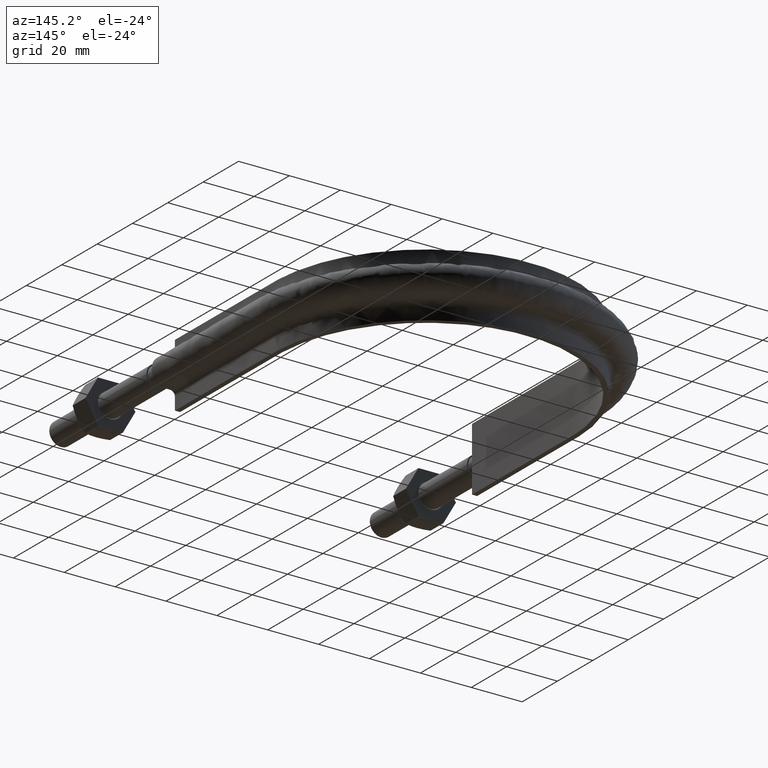
[diagram: clean part render]
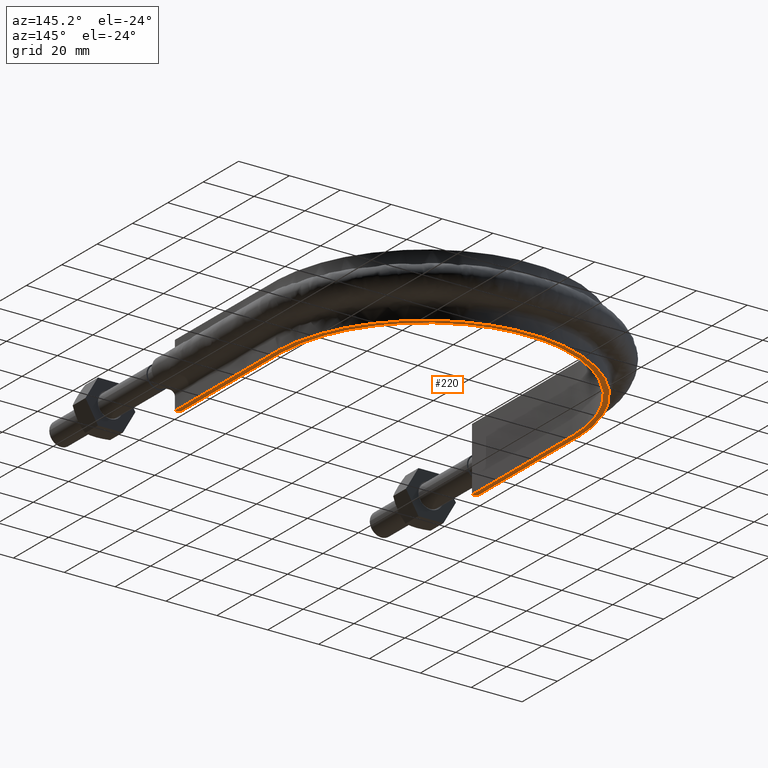
[diagram: same view with one face highlighted and labeled with its STEP entity id]
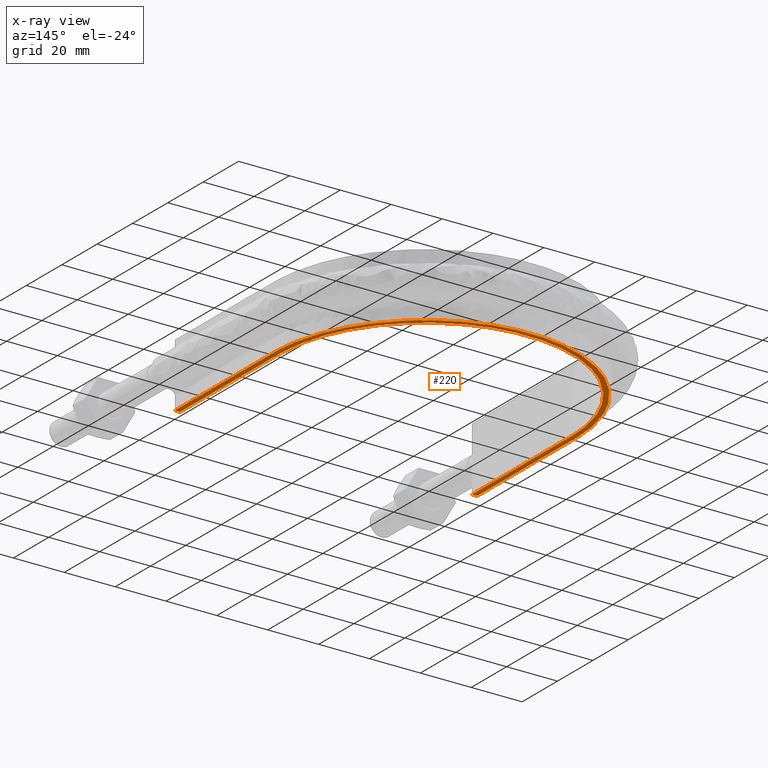
[diagram: x-ray of the same camera — body ghosted, the highlighted face saturated]
A machine part, auxiliary view. The second image highlights one B-rep face of the part: STEP entity #220.
The next image is the same camera in x-ray: the body ghosted, the highlighted face saturated — about 0% of this face is hidden behind the body in this view.
In plain terms, the highlighted planar face has unit normal (0, 0, 1).
Its self-contained STEP definition (entity closure, byte-faithful):
#220 = ADVANCED_FACE( '', ( #297 ), #298, .F. );
#297 = FACE_OUTER_BOUND( '', #464, .T. );
#298 = PLANE( '', #465 );
#464 = EDGE_LOOP( '', ( #1291, #1292, #1293, #1294 ) );
#465 = AXIS2_PLACEMENT_3D( '', #1295, #1296, #1297 );
#1291 = ORIENTED_EDGE( '', *, *, #1821, .F. );
#1292 = ORIENTED_EDGE( '', *, *, #1820, .F. );
#1293 = ORIENTED_EDGE( '', *, *, #1822, .F. );
#1294 = ORIENTED_EDGE( '', *, *, #1823, .F. );
#1295 = CARTESIAN_POINT( '', ( 75.0000000000000, 189.300000000000, -12.5000000000000 ) );
#1296 = DIRECTION( '', ( 0.000000000000000, 0.000000000000000, 1.00000000000000 ) );
#1297 = DIRECTION( '', ( 1.00000000000000, 0.000000000000000, 0.000000000000000 ) );
#1820 = EDGE_CURVE( '', #1972, #1968, #1974, .T. );
#1821 = EDGE_CURVE( '', #1968, #1975, #1976, .F. );
#1822 = EDGE_CURVE( '', #1977, #1972, #1978, .F. );
#1823 = EDGE_CURVE( '', #1975, #1977, #1979, .T. );
#1968 = VERTEX_POINT( '', #2214 );
#1972 = VERTEX_POINT( '', #2220 );
#1974 = LINE( '', #2252, #2253 );
#1975 = VERTEX_POINT( '', #2254 );
#1976 = B_SPLINE_CURVE_WITH_KNOTS( '', 3, ( #2255, #2256, #2257, #2258, #2259, #2260, #2261, #2262, #2263, #2264, #2265, #2266, #2267, #2268, #2269, #2270 ), .UNSPECIFIED., .F., .F., ( 4, 3, 1, 1, 1, 1, 1, 1, 3, 4 ), ( -8.93693843594010, -8.00000000000000, -7.00000000000000, -6.00000000000000, -5.00000000000000, -4.00000000000000, -3.00000000000000, -2.00000000000000, -1.00000000000000, -0.0630615640599001 ), .UNSPECIFIED. );
#1977 = VERTEX_POINT( '', #2271 );
#1978 = B_SPLINE_CURVE_WITH_KNOTS( '', 3, ( #2272, #2273, #2274, #2275, #2276, #2277, #2278, #2279, #2280, #2281, #2282, #2283, #2284, #2285, #2286, #2287 ), .UNSPECIFIED., .F., .F., ( 4, 3, 1, 1, 1, 1, 1, 1, 3, 4 ), ( 0.0630615640599001, 1.00000000000000, 2.00000000000000, 3.00000000000000, 4.00000000000000, 5.00000000000000, 6.00000000000000, 7.00000000000000, 8.00000000000000, 8.93693843594010 ), .UNSPECIFIED. );
#1979 = LINE( '', #2288, #2289 );
#2214 = CARTESIAN_POINT( '', ( -57.4000000000000, 59.3000000000000, -12.5000000000000 ) );
#2220 = CARTESIAN_POINT( '', ( -59.4000000000000, 59.3000000000000, -12.5000000000000 ) );
#2252 = CARTESIAN_POINT( '', ( -75.0000000000000, 59.3000000000000, -12.5000000000000 ) );
#2253 = VECTOR( '', #2857, 1000.00000000000 );
#2254 = CARTESIAN_POINT( '', ( 57.4000000000000, 59.3000000000000, -12.5000000000000 ) );
#2255 = CARTESIAN_POINT( '', ( 57.4000000000000, 59.3000000000000, -12.5000000000000 ) );
#2256 = CARTESIAN_POINT( '', ( 57.4000000000000, 78.0700000000000, -12.5000000000000 ) );
#2257 = CARTESIAN_POINT( '', ( 57.4000000000000, 96.8399999999999, -12.5000000000000 ) );
#2258 = CARTESIAN_POINT( '', ( 57.4000000000000, 115.610000000000, -12.5000000000000 ) );
#2259 = CARTESIAN_POINT( '', ( 57.4000000000000, 124.180493203978, -12.5000000000000 ) );
#2260 = CARTESIAN_POINT( '', ( 53.4810424094545, 141.371852668646, -12.5000000000000 ) );
#2261 = CARTESIAN_POINT( '', ( 37.0100296725023, 162.017335605858, -12.5000000000000 ) );
#2262 = CARTESIAN_POINT( '', ( 13.2087266606841, 173.481567469912, -12.5000000000000 ) );
#2263 = CARTESIAN_POINT( '', ( -13.2087266606841, 173.481567469912, -12.5000000000000 ) );
#2264 = CARTESIAN_POINT( '', ( -37.0100296725023, 162.017335605858, -12.5000000000000 ) );
#2265 = CARTESIAN_POINT( '', ( -53.4810424094545, 141.371852668646, -12.5000000000000 ) );
#2266 = CARTESIAN_POINT( '', ( -57.4000000000000, 124.180493203978, -12.5000000000000 ) );
#2267 = CARTESIAN_POINT( '', ( -57.4000000000000, 115.610000000000, -12.5000000000000 ) );
#2268 = CARTESIAN_POINT( '', ( -57.4000000000000, 96.8400000000000, -12.5000000000000 ) );
#2269 = CARTESIAN_POINT( '', ( -57.4000000000000, 78.0700000000000, -12.5000000000000 ) );
#2270 = CARTESIAN_POINT( '', ( -57.4000000000000, 59.3000000000000, -12.5000000000000 ) );
#2271 = CARTESIAN_POINT( '', ( 59.4000000000000, 59.3000000000000, -12.5000000000000 ) );
#2272 = CARTESIAN_POINT( '', ( -59.4000000000000, 59.3000000000000, -12.5000000000000 ) );
#2273 = CARTESIAN_POINT( '', ( -59.4000000000000, 78.0700000000001, -12.5000000000000 ) );
#2274 = CARTESIAN_POINT( '', ( -59.4000000000000, 96.8400000000000, -12.5000000000000 ) );
#2275 = CARTESIAN_POINT( '', ( -59.4000000000000, 115.610000000000, -12.5000000000000 ) );
#2276 = CARTESIAN_POINT( '', ( -59.4000000000000, 124.484817836499, -12.5000000000000 ) );
#2277 = CARTESIAN_POINT( '', ( -55.3444933644878, 142.266836188810, -12.5000000000000 ) );
#2278 = CARTESIAN_POINT( '', ( -38.2995777447149, 163.635011205915, -12.5000000000000 ) );
#2279 = CARTESIAN_POINT( '', ( -13.6689610391051, 175.497859339138, -12.5000000000000 ) );
#2280 = CARTESIAN_POINT( '', ( 13.6689610391052, 175.497859339137, -12.5000000000000 ) );
#2281 = CARTESIAN_POINT( '', ( 38.2995777447150, 163.635011205915, -12.5000000000000 ) );
#2282 = CARTESIAN_POINT( '', ( 55.3444933644878, 142.266836188810, -12.5000000000000 ) );
#2283 = CARTESIAN_POINT( '', ( 59.4000000000000, 124.484817836499, -12.5000000000000 ) );
#2284 = CARTESIAN_POINT( '', ( 59.4000000000000, 115.610000000000, -12.5000000000000 ) );
#2285 = CARTESIAN_POINT( '', ( 59.4000000000000, 96.8399999999999, -12.5000000000000 ) );
#2286 = CARTESIAN_POINT( '', ( 59.4000000000000, 78.0700000000000, -12.5000000000000 ) );
#2287 = CARTESIAN_POINT( '', ( 59.4000000000000, 59.3000000000000, -12.5000000000000 ) );
#2288 = CARTESIAN_POINT( '', ( -75.0000000000000, 59.3000000000000, -12.5000000000000 ) );
#2289 = VECTOR( '', #2858, 1000.00000000000 );
#2857 = DIRECTION( '', ( 1.00000000000000, -1.83649404852125E-048, 0.000000000000000 ) );
#2858 = DIRECTION( '', ( 1.00000000000000, -1.83649404852125E-048, 0.000000000000000 ) );